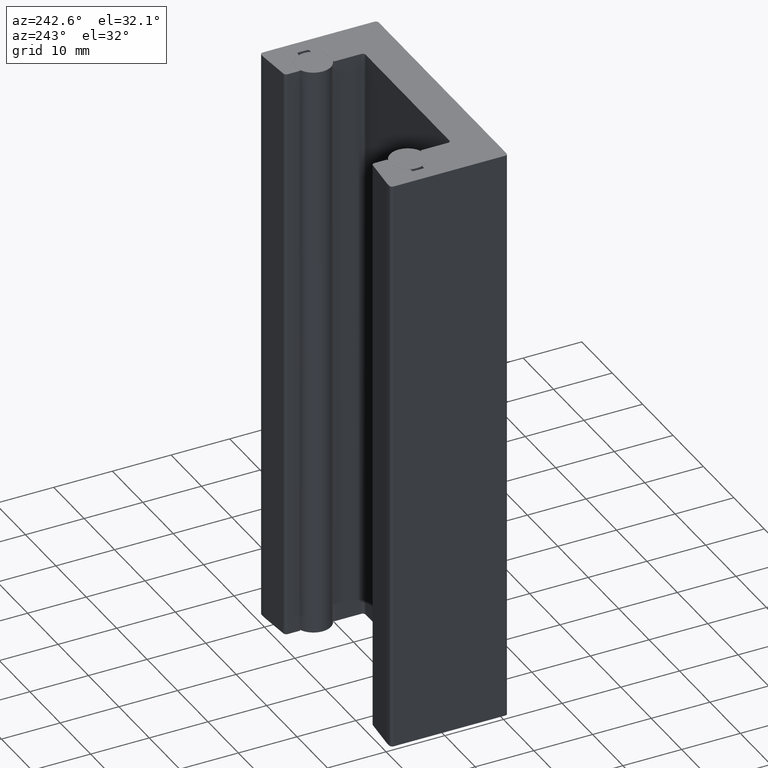
[diagram: clean part render]
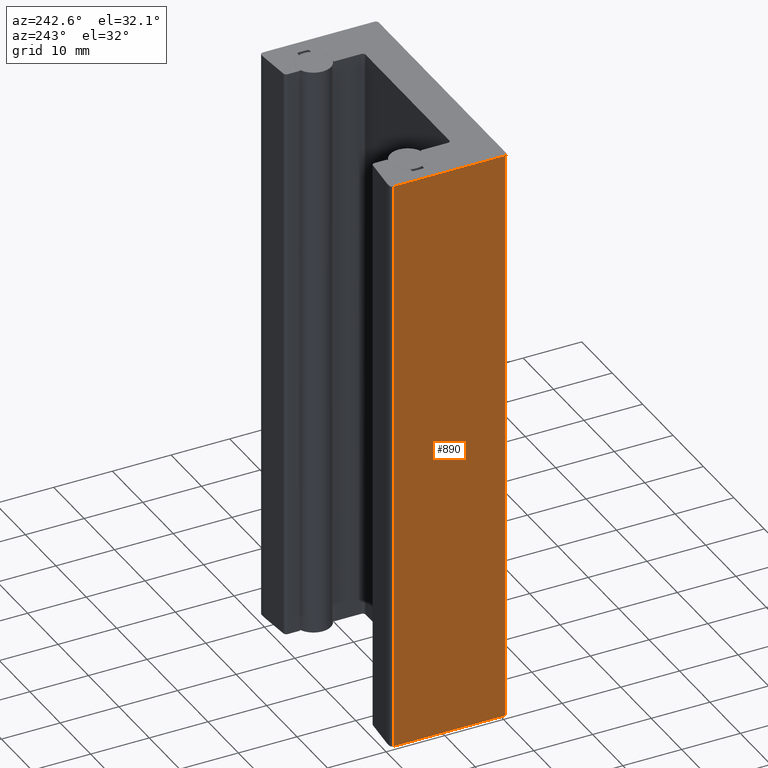
[diagram: same view with one face highlighted and labeled with its STEP entity id]
A machine part, auxiliary view. The second image highlights one B-rep face of the part: STEP entity #890.
In plain terms, the highlighted planar face has unit normal (1, 0, 0).
Its self-contained STEP definition (entity closure, byte-faithful):
#31=PLANE('',#1007);
#54=FACE_OUTER_BOUND('',#103,.T.);
#103=EDGE_LOOP('',(#596,#597,#598,#599));
#152=LINE('',#1420,#233);
#153=LINE('',#1423,#234);
#154=LINE('',#1425,#235);
#155=LINE('',#1426,#236);
#233=VECTOR('',#1122,10.);
#234=VECTOR('',#1125,10.);
#235=VECTOR('',#1126,10.);
#236=VECTOR('',#1127,10.);
#367=VERTEX_POINT('',#1413);
#370=VERTEX_POINT('',#1418);
#371=VERTEX_POINT('',#1422);
#372=VERTEX_POINT('',#1424);
#460=EDGE_CURVE('',#370,#367,#152,.T.);
#461=EDGE_CURVE('',#370,#371,#153,.T.);
#462=EDGE_CURVE('',#371,#372,#154,.T.);
#463=EDGE_CURVE('',#372,#367,#155,.T.);
#596=ORIENTED_EDGE('',*,*,#460,.F.);
#597=ORIENTED_EDGE('',*,*,#461,.T.);
#598=ORIENTED_EDGE('',*,*,#462,.T.);
#599=ORIENTED_EDGE('',*,*,#463,.T.);
#890=ADVANCED_FACE('',(#54),#31,.F.);
#1007=AXIS2_PLACEMENT_3D('',#1421,#1123,#1124);
#1122=DIRECTION('',(0.,0.,-1.));
#1123=DIRECTION('center_axis',(1.,7.8055758929729E-16,0.));
#1124=DIRECTION('ref_axis',(-7.8055758929729E-16,1.,0.));
#1125=DIRECTION('',(-7.8055758929729E-16,1.,0.));
#1126=DIRECTION('',(0.,0.,-1.));
#1127=DIRECTION('',(7.8055758929729E-16,-1.,0.));
#1413=CARTESIAN_POINT('',(-21.5,-9.49999999999999,-390.));
#1418=CARTESIAN_POINT('',(-21.5,-9.49999999999999,-290.));
#1420=CARTESIAN_POINT('',(-21.5,-9.49999999999999,-110.));
#1421=CARTESIAN_POINT('Origin',(-21.5,-10.,0.));
#1422=CARTESIAN_POINT('',(-21.5,9.49999999999999,-290.));
#1423=CARTESIAN_POINT('',(-21.5,9.99999999999999,-290.));
#1424=CARTESIAN_POINT('',(-21.5,9.49999999999999,-390.));
#1425=CARTESIAN_POINT('',(-21.5,9.49999999999999,0.));
#1426=CARTESIAN_POINT('',(-21.5,9.99999999999999,-390.));